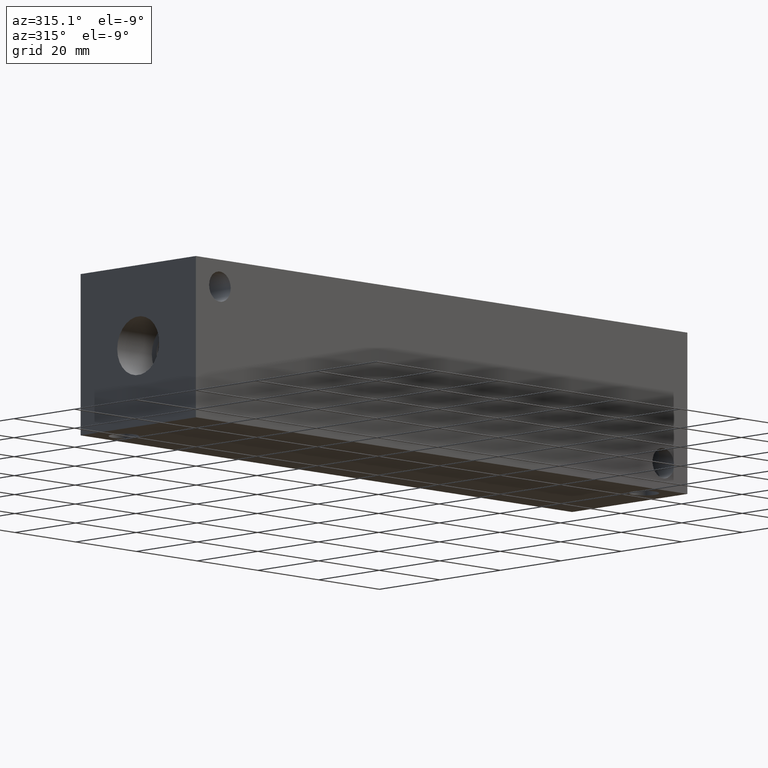
[diagram: clean part render]
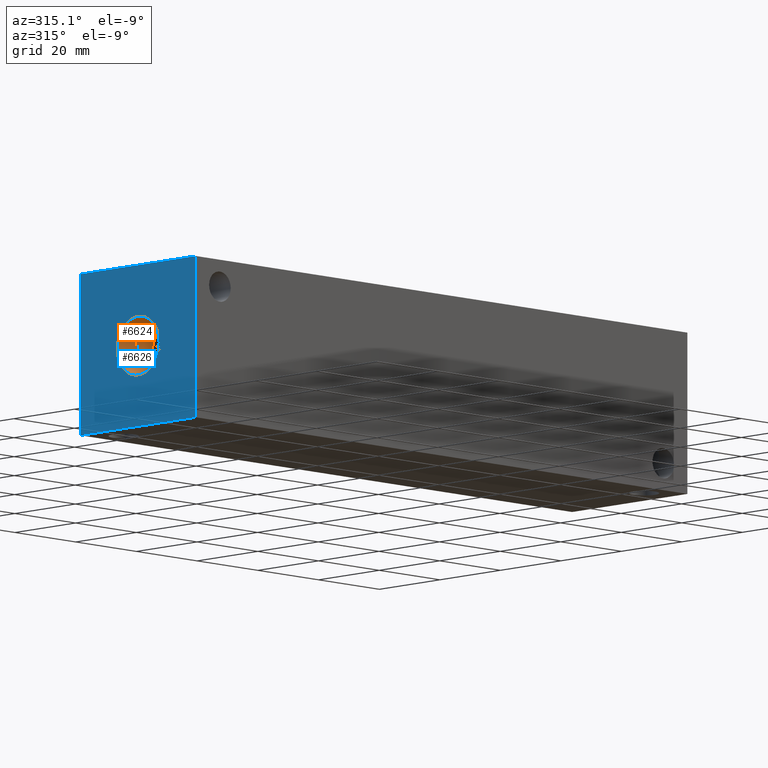
[diagram: same view with the hole feature highlighted: cylindrical wall and planar end face, labeled with their STEP entity ids]
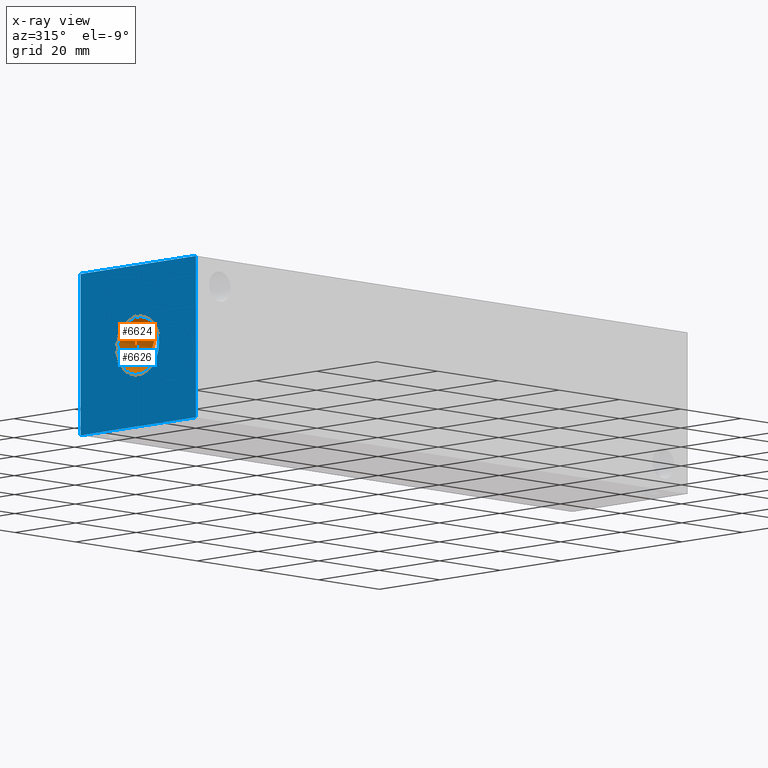
[diagram: x-ray of the same camera — body ghosted, the hole faces saturated]
A machine part, auxiliary view. The highlighted faces form one hole feature of diameter 13.8684 mm: the cylindrical wall (entity #6624, orange) and its adjacent planar end face (entity #6626, blue) — they share a circular edge in the B-rep.
The next image is the same camera in x-ray (body ghosted, the hole faces saturated) — the bore reads through the body.
Wall:
#46=CYLINDRICAL_SURFACE('',#6946,6.9342);
#97=CIRCLE('',#6943,6.9342);
#98=CIRCLE('',#6944,6.9342);
#100=CIRCLE('',#6947,6.9342);
#101=CIRCLE('',#6948,6.9342);
#700=FACE_OUTER_BOUND('',#1076,.T.);
#1076=EDGE_LOOP('',(#5876,#5877,#5878,#5879,#5880,#5881));
#1750=LINE('',#11204,#2418);
#2418=VECTOR('',#8222,6.9342);
#3201=VERTEX_POINT('',#11193);
#3202=VERTEX_POINT('',#11194);
#3204=VERTEX_POINT('',#11200);
#3205=VERTEX_POINT('',#11201);
#4099=EDGE_CURVE('',#3201,#3202,#97,.T.);
#4100=EDGE_CURVE('',#3202,#3201,#98,.T.);
#4102=EDGE_CURVE('',#3204,#3205,#100,.T.);
#4103=EDGE_CURVE('',#3205,#3204,#101,.T.);
#4104=EDGE_CURVE('',#3205,#3202,#1750,.T.);
#5876=ORIENTED_EDGE('',*,*,#4102,.F.);
#5877=ORIENTED_EDGE('',*,*,#4103,.F.);
#5878=ORIENTED_EDGE('',*,*,#4104,.T.);
#5879=ORIENTED_EDGE('',*,*,#4099,.F.);
#5880=ORIENTED_EDGE('',*,*,#4100,.F.);
#5881=ORIENTED_EDGE('',*,*,#4104,.F.);
#6624=ADVANCED_FACE('',(#700),#46,.F.);
#6943=AXIS2_PLACEMENT_3D('',#11195,#8210,#8211);
#6944=AXIS2_PLACEMENT_3D('',#11196,#8212,#8213);
#6946=AXIS2_PLACEMENT_3D('',#11199,#8216,#8217);
#6947=AXIS2_PLACEMENT_3D('',#11202,#8218,#8219);
#6948=AXIS2_PLACEMENT_3D('',#11203,#8220,#8221);
#8210=DIRECTION('center_axis',(-1.,0.,0.));
#8211=DIRECTION('ref_axis',(0.,1.,0.));
#8212=DIRECTION('center_axis',(-1.,0.,0.));
#8213=DIRECTION('ref_axis',(0.,1.,0.));
#8216=DIRECTION('center_axis',(-1.,0.,0.));
#8217=DIRECTION('ref_axis',(0.,1.,0.));
#8218=DIRECTION('center_axis',(1.,0.,0.));
#8219=DIRECTION('ref_axis',(0.,1.,0.));
#8220=DIRECTION('center_axis',(1.,0.,0.));
#8221=DIRECTION('ref_axis',(0.,1.,0.));
#8222=DIRECTION('',(1.,0.,0.));
#11193=CARTESIAN_POINT('',(11.4046,25.9842,19.05));
#11194=CARTESIAN_POINT('',(11.4046,12.1158,19.05));
#11195=CARTESIAN_POINT('Origin',(11.4046,19.05,19.05));
#11196=CARTESIAN_POINT('Origin',(11.4046,19.05,19.05));
#11199=CARTESIAN_POINT('Origin',(5.7023,19.05,19.05));
#11200=CARTESIAN_POINT('',(0.,25.9842,19.05));
#11201=CARTESIAN_POINT('',(0.,12.1158,19.05));
#11202=CARTESIAN_POINT('Origin',(0.,19.05,19.05));
#11203=CARTESIAN_POINT('Origin',(0.,19.05,19.05));
#11204=CARTESIAN_POINT('',(5.7023,12.1158,19.05));
End face:
#100=CIRCLE('',#6947,6.9342);
#101=CIRCLE('',#6948,6.9342);
#143=FACE_BOUND('',#1079,.T.);
#367=PLANE('',#6950);
#702=FACE_OUTER_BOUND('',#1078,.T.);
#1078=EDGE_LOOP('',(#5887,#5888,#5889,#5890));
#1079=EDGE_LOOP('',(#5891,#5892));
#1348=LINE('',#10114,#2016);
#1752=LINE('',#11210,#2420);
#1753=LINE('',#11211,#2421);
#1754=LINE('',#11212,#2422);
#2016=VECTOR('',#7352,10.);
#2420=VECTOR('',#8228,10.);
#2421=VECTOR('',#8229,10.);
#2422=VECTOR('',#8230,10.);
#2876=VERTEX_POINT('',#10107);
#2879=VERTEX_POINT('',#10112);
#3204=VERTEX_POINT('',#11200);
#3205=VERTEX_POINT('',#11201);
#3206=VERTEX_POINT('',#11208);
#3207=VERTEX_POINT('',#11209);
#3624=EDGE_CURVE('',#2879,#2876,#1348,.T.);
#4102=EDGE_CURVE('',#3204,#3205,#100,.T.);
#4103=EDGE_CURVE('',#3205,#3204,#101,.T.);
#4106=EDGE_CURVE('',#3206,#3207,#1752,.T.);
#4107=EDGE_CURVE('',#3207,#2876,#1753,.T.);
#4108=EDGE_CURVE('',#3206,#2879,#1754,.T.);
#5887=ORIENTED_EDGE('',*,*,#4106,.T.);
#5888=ORIENTED_EDGE('',*,*,#4107,.T.);
#5889=ORIENTED_EDGE('',*,*,#3624,.F.);
#5890=ORIENTED_EDGE('',*,*,#4108,.F.);
#5891=ORIENTED_EDGE('',*,*,#4102,.T.);
#5892=ORIENTED_EDGE('',*,*,#4103,.T.);
#6626=ADVANCED_FACE('',(#702,#143),#367,.T.);
#6947=AXIS2_PLACEMENT_3D('',#11202,#8218,#8219);
#6948=AXIS2_PLACEMENT_3D('',#11203,#8220,#8221);
#6950=AXIS2_PLACEMENT_3D('',#11207,#8226,#8227);
#7352=DIRECTION('',(0.,-1.,0.));
#8218=DIRECTION('center_axis',(1.,0.,0.));
#8219=DIRECTION('ref_axis',(0.,1.,0.));
#8220=DIRECTION('center_axis',(1.,0.,0.));
#8221=DIRECTION('ref_axis',(0.,1.,0.));
#8226=DIRECTION('center_axis',(-1.,0.,0.));
#8227=DIRECTION('ref_axis',(0.,-1.,0.));
#8228=DIRECTION('',(0.,-1.,0.));
#8229=DIRECTION('',(0.,0.,1.));
#8230=DIRECTION('',(0.,0.,1.));
#10107=CARTESIAN_POINT('',(0.,0.,38.1));
#10112=CARTESIAN_POINT('',(0.,38.1,38.1));
#10114=CARTESIAN_POINT('',(0.,38.1,38.1));
#11200=CARTESIAN_POINT('',(0.,25.9842,19.05));
#11201=CARTESIAN_POINT('',(0.,12.1158,19.05));
#11202=CARTESIAN_POINT('Origin',(0.,19.05,19.05));
#11203=CARTESIAN_POINT('Origin',(0.,19.05,19.05));
#11207=CARTESIAN_POINT('Origin',(0.,38.1,0.));
#11208=CARTESIAN_POINT('',(0.,38.1,0.));
#11209=CARTESIAN_POINT('',(0.,0.,0.));
#11210=CARTESIAN_POINT('',(0.,38.1,0.));
#11211=CARTESIAN_POINT('',(0.,0.,0.));
#11212=CARTESIAN_POINT('',(0.,38.1,0.));